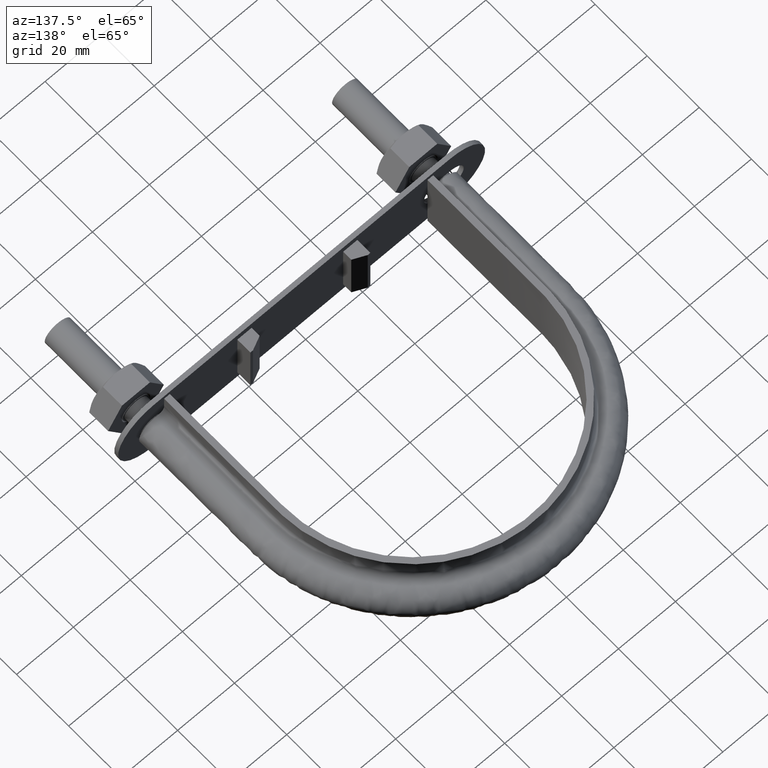
[diagram: clean part render]
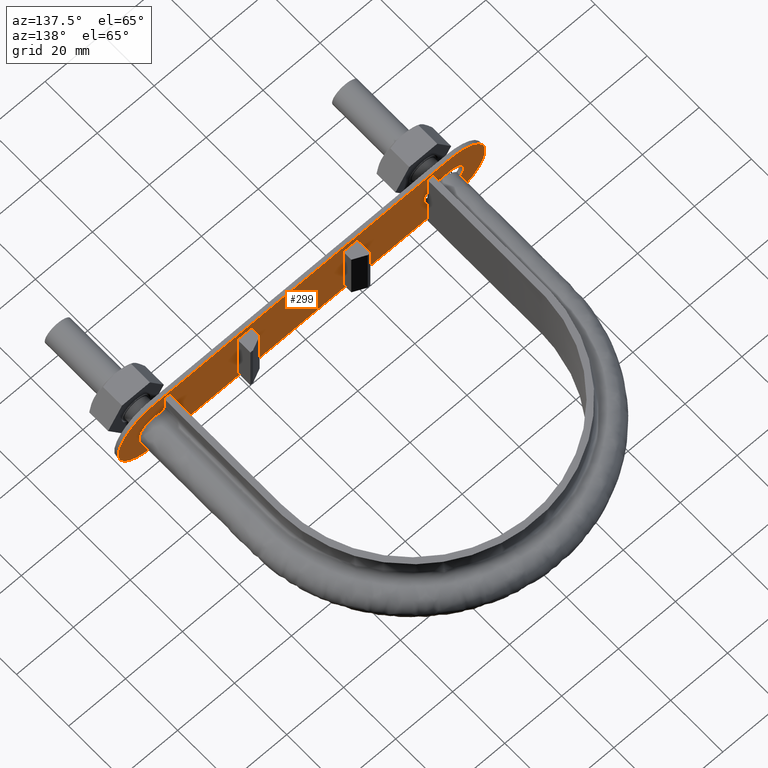
[diagram: same view with one face highlighted and labeled with its STEP entity id]
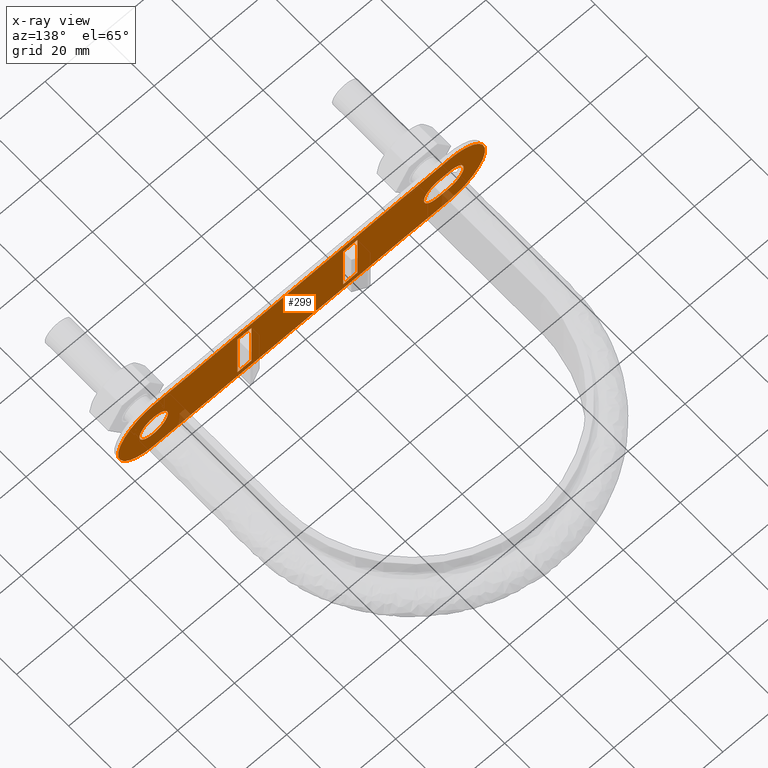
[diagram: x-ray of the same camera — body ghosted, the highlighted face saturated]
A machine part, auxiliary view. The second image highlights one B-rep face of the part: STEP entity #299.
The next image is the same camera in x-ray: the body ghosted, the highlighted face saturated — about 2% of this face is hidden behind the body in this view.
In plain terms, the highlighted planar face has unit normal (-0, 1, -0).
Its self-contained STEP definition (entity closure, byte-faithful):
#299 = ADVANCED_FACE( '', ( #457, #458, #459, #460, #461 ), #462, .T. );
#457 = FACE_OUTER_BOUND( '', #1524, .T. );
#458 = FACE_BOUND( '', #1525, .T. );
#459 = FACE_BOUND( '', #1526, .T. );
#460 = FACE_BOUND( '', #1527, .T. );
#461 = FACE_BOUND( '', #1528, .T. );
#462 = PLANE( '', #1529 );
#1524 = EDGE_LOOP( '', ( #1917, #1918, #1919, #1920 ) );
#1525 = EDGE_LOOP( '', ( #1921, #1922, #1923, #1924 ) );
#1526 = EDGE_LOOP( '', ( #1925 ) );
#1527 = EDGE_LOOP( '', ( #1926, #1927, #1928, #1929 ) );
#1528 = EDGE_LOOP( '', ( #1930, #1931, #1932, #1933 ) );
#1529 = AXIS2_PLACEMENT_3D( '', #1934, #1935, #1936 );
#1917 = ORIENTED_EDGE( '', *, *, #2574, .T. );
#1918 = ORIENTED_EDGE( '', *, *, #2575, .T. );
#1919 = ORIENTED_EDGE( '', *, *, #2576, .T. );
#1920 = ORIENTED_EDGE( '', *, *, #2577, .T. );
#1921 = ORIENTED_EDGE( '', *, *, #2578, .T. );
#1922 = ORIENTED_EDGE( '', *, *, #2579, .T. );
#1923 = ORIENTED_EDGE( '', *, *, #2580, .F. );
#1924 = ORIENTED_EDGE( '', *, *, #2573, .F. );
#1925 = ORIENTED_EDGE( '', *, *, #2581, .F. );
#1926 = ORIENTED_EDGE( '', *, *, #2582, .F. );
#1927 = ORIENTED_EDGE( '', *, *, #2583, .F. );
#1928 = ORIENTED_EDGE( '', *, *, #2584, .F. );
#1929 = ORIENTED_EDGE( '', *, *, #2585, .F. );
#1930 = ORIENTED_EDGE( '', *, *, #2586, .F. );
#1931 = ORIENTED_EDGE( '', *, *, #2587, .T. );
#1932 = ORIENTED_EDGE( '', *, *, #2588, .T. );
#1933 = ORIENTED_EDGE( '', *, *, #2589, .F. );
#1934 = CARTESIAN_POINT( '', ( -53.5000000000000, 36.7999999999975, 3.14283640215862E-009 ) );
#1935 = DIRECTION( '', ( -1.71347816196159E-040, 1.00000000000000, -6.03659968900116E-014 ) );
#1936 = DIRECTION( '', ( 1.00000000000000, 2.03915764624954E-056, -2.83848234144727E-027 ) );
#2573 = EDGE_CURVE( '', #2856, #2852, #2858, .T. );
#2574 = EDGE_CURVE( '', #2859, #2860, #2861, .T. );
#2575 = EDGE_CURVE( '', #2860, #2862, #2863, .T. );
#2576 = EDGE_CURVE( '', #2862, #2864, #2865, .T. );
#2577 = EDGE_CURVE( '', #2864, #2859, #2866, .T. );
#2578 = EDGE_CURVE( '', #2856, #2867, #2868, .T. );
#2579 = EDGE_CURVE( '', #2867, #2869, #2870, .T. );
#2580 = EDGE_CURVE( '', #2852, #2869, #2871, .T. );
#2581 = EDGE_CURVE( '', #2872, #2872, #2873, .T. );
#2582 = EDGE_CURVE( '', #2874, #2875, #2876, .T. );
#2583 = EDGE_CURVE( '', #2877, #2874, #2878, .T. );
#2584 = EDGE_CURVE( '', #2879, #2877, #2880, .T. );
#2585 = EDGE_CURVE( '', #2875, #2879, #2881, .T. );
#2586 = EDGE_CURVE( '', #2882, #2883, #2884, .T. );
#2587 = EDGE_CURVE( '', #2882, #2885, #2886, .T. );
#2588 = EDGE_CURVE( '', #2885, #2887, #2888, .T. );
#2589 = EDGE_CURVE( '', #2883, #2887, #2889, .T. );
#2852 = VERTEX_POINT( '', #3506 );
#2856 = VERTEX_POINT( '', #3512 );
#2858 = LINE( '', #3515, #3516 );
#2859 = VERTEX_POINT( '', #3517 );
#2860 = VERTEX_POINT( '', #3518 );
#2861 = CIRCLE( '', #3519, 12.5000000000000 );
#2862 = VERTEX_POINT( '', #3520 );
#2863 = LINE( '', #3521, #3522 );
#2864 = VERTEX_POINT( '', #3523 );
#2865 = CIRCLE( '', #3524, 12.5000000000000 );
#2866 = LINE( '', #3525, #3526 );
#2867 = VERTEX_POINT( '', #3527 );
#2868 = LINE( '', #3528, #3529 );
#2869 = VERTEX_POINT( '', #3530 );
#2870 = LINE( '', #3531, #3532 );
#2871 = LINE( '', #3533, #3534 );
#2872 = VERTEX_POINT( '', #3535 );
#2873 = CIRCLE( '', #3536, 5.00000000000000 );
#2874 = VERTEX_POINT( '', #3537 );
#2875 = VERTEX_POINT( '', #3538 );
#2876 = CIRCLE( '', #3539, 5.00000000000000 );
#2877 = VERTEX_POINT( '', #3540 );
#2878 = LINE( '', #3541, #3542 );
#2879 = VERTEX_POINT( '', #3543 );
#2880 = CIRCLE( '', #3544, 5.00000000000000 );
#2881 = LINE( '', #3545, #3546 );
#2882 = VERTEX_POINT( '', #3547 );
#2883 = VERTEX_POINT( '', #3548 );
#2884 = LINE( '', #3549, #3550 );
#2885 = VERTEX_POINT( '', #3551 );
#2886 = LINE( '', #3552, #3553 );
#2887 = VERTEX_POINT( '', #3554 );
#2888 = LINE( '', #3555, #3556 );
#2889 = LINE( '', #3557, #3558 );
#3506 = CARTESIAN_POINT( '', ( -21.0999999994124, 36.7999999999981, 10.0000000012395 ) );
#3512 = CARTESIAN_POINT( '', ( -21.1000000005873, 36.7999999999969, -9.99999999876051 ) );
#3515 = CARTESIAN_POINT( '', ( -21.1000000005873, 36.7999999999969, -9.99999999876051 ) );
#3516 = VECTOR( '', #4091, 1000.00000000000 );
#3517 = CARTESIAN_POINT( '', ( -53.5000000007344, 36.7999999999967, -12.4999999968572 ) );
#3518 = CARTESIAN_POINT( '', ( -53.4999999996329, 36.7999999999983, 12.5000000031428 ) );
#3519 = AXIS2_PLACEMENT_3D( '', #4092, #4093, #4094 );
#3520 = CARTESIAN_POINT( '', ( 50.5000000003672, 36.7999999999983, 12.5000000000881 ) );
#3521 = CARTESIAN_POINT( '', ( -53.5000000000000, 36.7999999999983, 12.5000000031428 ) );
#3522 = VECTOR( '', #4095, 1000.00000000000 );
#3523 = CARTESIAN_POINT( '', ( 50.4999999992657, 36.7999999999967, -12.5000000029667 ) );
#3524 = AXIS2_PLACEMENT_3D( '', #4096, #4097, #4098 );
#3525 = CARTESIAN_POINT( '', ( -53.5000000007343, 36.7999999999967, -12.4999999968572 ) );
#3526 = VECTOR( '', #4099, 1000.00000000000 );
#3527 = CARTESIAN_POINT( '', ( -16.1000000005872, 36.7999999999969, -9.99999999905423 ) );
#3528 = CARTESIAN_POINT( '', ( -53.5000000005875, 36.7999999999969, -9.99999999685717 ) );
#3529 = VECTOR( '', #4100, 1000.00000000000 );
#3530 = CARTESIAN_POINT( '', ( -16.0999999994123, 36.7999999999981, 10.0000000009458 ) );
#3531 = CARTESIAN_POINT( '', ( -16.0999999999998, 36.7999999999975, 9.45775754164181E-010 ) );
#3532 = VECTOR( '', #4101, 1000.00000000000 );
#3533 = CARTESIAN_POINT( '', ( -21.0999999994126, 36.7999999999981, 10.0000000012395 ) );
#3534 = VECTOR( '', #4102, 1000.00000000000 );
#3535 = CARTESIAN_POINT( '', ( 50.5000000000000, 36.7999999999978, 4.99999999703334 ) );
#3536 = AXIS2_PLACEMENT_3D( '', #4103, #4104, #4105 );
#3537 = CARTESIAN_POINT( '', ( -53.5000000002938, 36.7999999999972, -4.99999999685717 ) );
#3538 = CARTESIAN_POINT( '', ( -53.4999999998532, 36.7999999999978, 5.00000000302533 ) );
#3539 = AXIS2_PLACEMENT_3D( '', #4106, #4107, #4108 );
#3540 = CARTESIAN_POINT( '', ( -49.5000000002938, 36.7999999999972, -4.99999999709215 ) );
#3541 = CARTESIAN_POINT( '', ( -53.5000000002938, 36.7999999999972, -4.99999999685717 ) );
#3542 = VECTOR( '', #4109, 1000.00000000000 );
#3543 = CARTESIAN_POINT( '', ( -49.4999999998531, 36.7999999999978, 5.00000000290784 ) );
#3544 = AXIS2_PLACEMENT_3D( '', #4110, #4111, #4112 );
#3545 = CARTESIAN_POINT( '', ( -49.4999999997063, 36.7999999999978, 5.00000000290784 ) );
#3546 = VECTOR( '', #4113, 1000.00000000000 );
#3547 = CARTESIAN_POINT( '', ( 16.0999999994130, 36.7999999999969, -10.0000000012396 ) );
#3548 = CARTESIAN_POINT( '', ( 16.1000000005879, 36.7999999999981, 9.99999999876045 ) );
#3549 = CARTESIAN_POINT( '', ( 16.0999999994130, 36.7999999999969, -10.0000000009458 ) );
#3550 = VECTOR( '', #4114, 1000.00000000000 );
#3551 = CARTESIAN_POINT( '', ( 21.0999999994131, 36.7999999999969, -10.0000000012396 ) );
#3552 = CARTESIAN_POINT( '', ( -53.5000000000000, 36.7999999999969, -10.0000000012396 ) );
#3553 = VECTOR( '', #4115, 1000.00000000000 );
#3554 = CARTESIAN_POINT( '', ( 21.1000000005880, 36.7999999999981, 9.99999999876045 ) );
#3555 = CARTESIAN_POINT( '', ( 21.1000000000006, 36.7999999999975, -1.23953590640783E-009 ) );
#3556 = VECTOR( '', #4116, 1000.00000000000 );
#3557 = CARTESIAN_POINT( '', ( 21.1000000005880, 36.7999999999981, 9.99999999876045 ) );
#3558 = VECTOR( '', #4117, 1000.00000000000 );
#4091 = DIRECTION( '', ( 5.87449371121504E-011, 6.03659968900116E-014, 1.00000000000000 ) );
#4092 = CARTESIAN_POINT( '', ( -53.5000000000001, 36.7999999999975, 3.14283640215863E-009 ) );
#4093 = DIRECTION( '', ( 2.83848234144727E-027, 1.00000000000000, -6.03659968900116E-014 ) );
#4094 = DIRECTION( '', ( 0.000000000000000, 6.03659968900116E-014, 1.00000000000000 ) );
#4095 = DIRECTION( '', ( 1.00000000000000, -2.83848234166134E-027, -3.54620457586579E-024 ) );
#4096 = CARTESIAN_POINT( '', ( 50.5000000000000, 36.7999999999975, -2.96664682272325E-009 ) );
#4097 = DIRECTION( '', ( 2.83848234144727E-027, 1.00000000000000, -6.03659968900116E-014 ) );
#4098 = DIRECTION( '', ( 0.000000000000000, 6.03659968900116E-014, 1.00000000000000 ) );
#4099 = DIRECTION( '', ( -1.00000000000000, 3.54904285531665E-024, 5.87450643685463E-011 ) );
#4100 = DIRECTION( '', ( 1.00000000000000, -3.54904285531665E-024, -5.87450643685463E-011 ) );
#4101 = DIRECTION( '', ( 5.87449371121504E-011, 6.03659968900116E-014, 1.00000000000000 ) );
#4102 = DIRECTION( '', ( 1.00000000000000, -3.54904285531665E-024, -5.87450643685463E-011 ) );
#4103 = CARTESIAN_POINT( '', ( 50.5000000000000, 36.7999999999975, -2.96665723106410E-009 ) );
#4104 = DIRECTION( '', ( 2.83848234144727E-027, 1.00000000000000, -6.03659968900116E-014 ) );
#4105 = DIRECTION( '', ( 0.000000000000000, 6.03659968900116E-014, 1.00000000000000 ) );
#4106 = CARTESIAN_POINT( '', ( -53.5000000000001, 36.7999999999975, 3.14282425909429E-009 ) );
#4107 = DIRECTION( '', ( 2.83848234144727E-027, 1.00000000000000, -6.03659968900116E-014 ) );
#4108 = DIRECTION( '', ( 0.000000000000000, 6.03659968900116E-014, 1.00000000000000 ) );
#4109 = DIRECTION( '', ( -1.00000000000000, 3.54904285531665E-024, 5.87450643685463E-011 ) );
#4110 = CARTESIAN_POINT( '', ( -49.5000000000000, 36.7999999999975, 2.90784400162011E-009 ) );
#4111 = DIRECTION( '', ( 2.83848234144727E-027, 1.00000000000000, -6.03659968900116E-014 ) );
#4112 = DIRECTION( '', ( 0.000000000000000, 6.03659968900116E-014, 1.00000000000000 ) );
#4113 = DIRECTION( '', ( 1.00000000000000, -2.83848234166134E-027, -3.54620457586579E-024 ) );
#4114 = DIRECTION( '', ( 5.87449371121504E-011, 6.03659968900116E-014, 1.00000000000000 ) );
#4115 = DIRECTION( '', ( 1.00000000000000, -2.83848234166212E-027, -3.55925277589881E-024 ) );
#4116 = DIRECTION( '', ( 5.87449371121504E-011, 6.03659968900116E-014, 1.00000000000000 ) );
#4117 = DIRECTION( '', ( 1.00000000000000, -2.83848234166212E-027, -3.55925277589881E-024 ) );